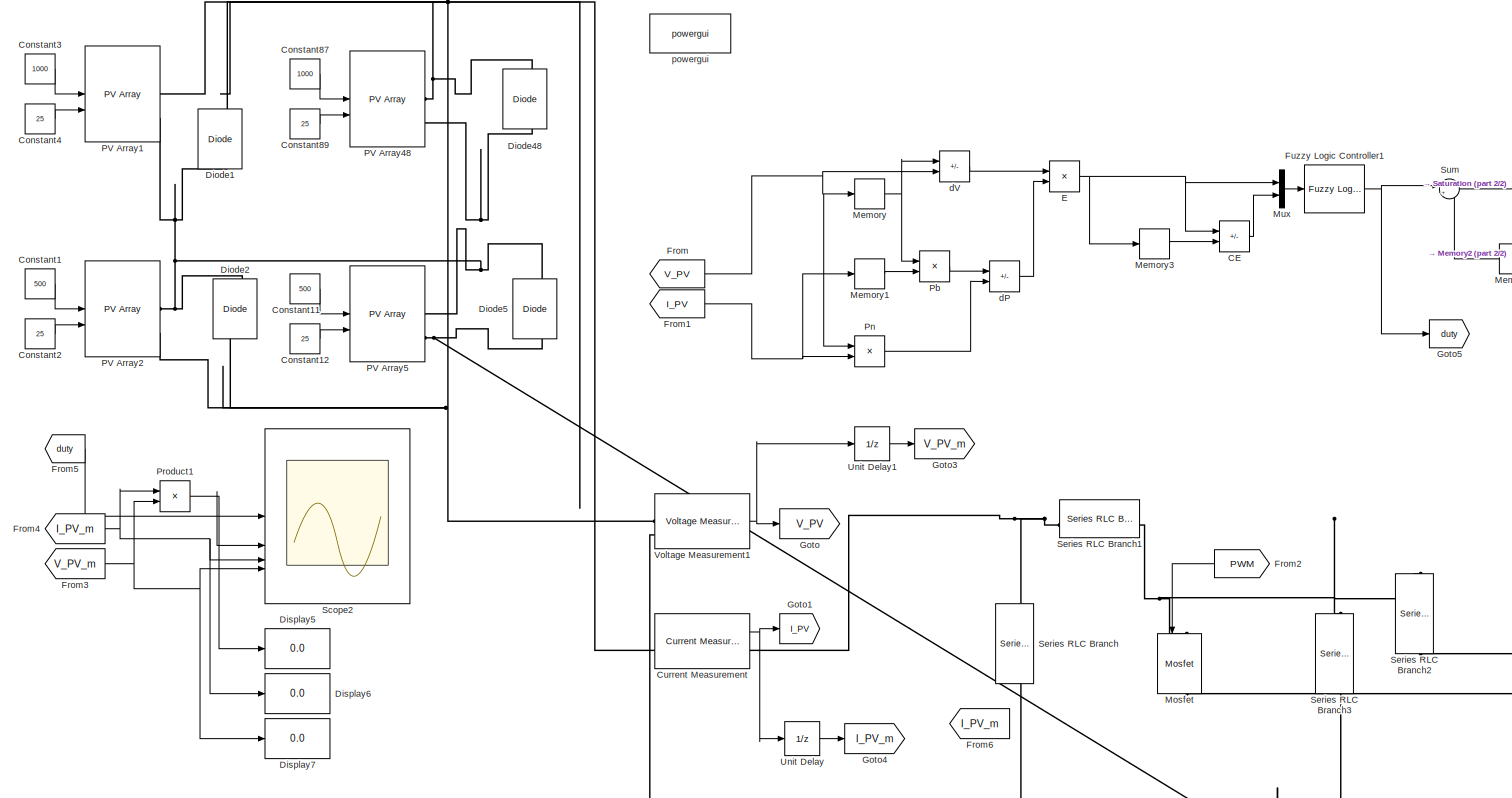
[diagram: root canvas - part 1/2, central region]
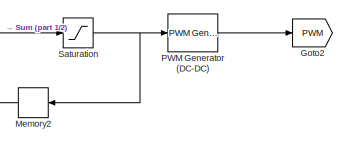
[diagram: root canvas - part 2/2, top right region]
MODEL slx_63d74f4dceec
KIND model
CONFIG AbsTol = auto
CONFIG EnableMultiTasking = off
CONFIG FixedStep = auto
CONFIG MaxStep = auto
CONFIG MinStep = auto
CONFIG RelTol = 1e-3
CONFIG SampleTimeConstraint = Unconstrained
CONFIG SolverName = VariableStepAuto
CONFIG StartTime = 0.0
CONFIG StopTime = 10.0
BLOCK [Sum] CE
  IconShape = rectangular
  Inputs = +-
BLOCK [Constant] Constant1
  Value = 500
BLOCK [Constant] Constant11
  Value = 500
BLOCK [Constant] Constant12
  Value = 25
BLOCK [Constant] Constant2
  Value = 25
BLOCK [Constant] Constant3
  Value = 1000
BLOCK [Constant] Constant4
  Value = 25
BLOCK [Constant] Constant87
  Value = 1000
BLOCK [Constant] Constant89
  Value = 25
BLOCK [Reference] Current Measurement  REF=spsCurrentMeasurementLib/Current Measurement
  LibrarySourceBlock = sps_lib/Sensors and Measurements/Current Measurement
  SourceBlock = spsCurrentMeasurementLib/Current Measurement
  SourceType = Current Measurement
  UserDataPersistent = on
BLOCK [Reference] Diode1  REF=spsDiodeLib/Diode
  LibrarySourceBlock = sps_lib/Power Electronics/Diode
  NameLocation = right
  SourceBlock = spsDiodeLib/Diode
  SourceType = Diode
BLOCK [Reference] Diode2  REF=spsDiodeLib/Diode
  LibrarySourceBlock = sps_lib/Power Electronics/Diode
  NameLocation = right
  SourceBlock = spsDiodeLib/Diode
  SourceType = Diode
BLOCK [Reference] Diode48  REF=spsDiodeLib/Diode
  LibrarySourceBlock = sps_lib/Power Electronics/Diode
  NameLocation = right
  SourceBlock = spsDiodeLib/Diode
  SourceType = Diode
BLOCK [Reference] Diode5  REF=spsDiodeLib/Diode
  LibrarySourceBlock = sps_lib/Power Electronics/Diode
  NameLocation = right
  SourceBlock = spsDiodeLib/Diode
  SourceType = Diode
BLOCK [Display] Display5
  Decimation = 1
BLOCK [Display] Display6
  Decimation = 1
BLOCK [Display] Display7
  Decimation = 1
BLOCK [Product] E
  Inputs = /*
  NameLocation = top
BLOCK [From] From
  GotoTag = V_PV
BLOCK [From] From1
  GotoTag = I_PV
BLOCK [From] From2
  GotoTag = PWM
  NameLocation = top
BLOCK [From] From3
  GotoTag = V_PV_m
BLOCK [From] From4
  GotoTag = I_PV_m
BLOCK [From] From5
  GotoTag = duty
BLOCK [From] From6
  GotoTag = I_PV_m
BLOCK [Reference] Fuzzy Logic Controller1  REF=fuzblock/Fuzzy Logic   (lib defined in mdl_858b3b3e7478)
Controller
  SourceBlock = fuzblock/Fuzzy Logic \nController
  SourceType = Fuzzy Inference System
BLOCK [Goto] Goto
  GotoTag = V_PV
BLOCK [Goto] Goto1
  GotoTag = I_PV
BLOCK [Goto] Goto2
  GotoTag = PWM
  NameLocation = top
BLOCK [Goto] Goto3
  GotoTag = V_PV_m
BLOCK [Goto] Goto4
  GotoTag = I_PV_m
BLOCK [Goto] Goto5
  GotoTag = duty
BLOCK [Memory] Memory
  InheritSampleTime = on
BLOCK [Memory] Memory1
  InheritSampleTime = on
BLOCK [Memory] Memory2
  InheritSampleTime = on
  NameLocation = top
BLOCK [Memory] Memory3
  InheritSampleTime = on
BLOCK [Reference] Mosfet  REF=spsMosfetLib/Mosfet
  LibrarySourceBlock = sps_lib/Power Electronics/Mosfet
  NameLocation = left
  SourceBlock = spsMosfetLib/Mosfet
  SourceType = Mosfet
BLOCK [Mux] Mux
  DisplayOption = bar
  Inputs = 2
BLOCK [Reference] PV Array1  REF=spsPVArrayLib/PV Array
  LibrarySourceBlock = sps_lib/Sources/PV Array
  SourceBlock = spsPVArrayLib/PV Array
  SourceType = PV array
BLOCK [Reference] PV Array2  REF=spsPVArrayLib/PV Array
  LibrarySourceBlock = sps_lib/Sources/PV Array
  SourceBlock = spsPVArrayLib/PV Array
  SourceType = PV array
BLOCK [Reference] PV Array48  REF=spsPVArrayLib/PV Array
  LibrarySourceBlock = sps_lib/Sources/PV Array
  SourceBlock = spsPVArrayLib/PV Array
  SourceType = PV array
BLOCK [Reference] PV Array5  REF=spsPVArrayLib/PV Array
  LibrarySourceBlock = sps_lib/Sources/PV Array
  SourceBlock = spsPVArrayLib/PV Array
  SourceType = PV array
BLOCK [Reference] PWM Generator (DC-DC)  REF=spsPWMGeneratorDCDCLib/PWM Generator
(DC-DC)
  LibrarySourceBlock = sps_lib/Power Electronics/Power Electronics Control/PWM Generator\n(DC-DC)
  SourceBlock = spsPWMGeneratorDCDCLib/PWM Generator\n(DC-DC)
  SourceType = PWM Generator (DC-DC)
BLOCK [Product] Pb
BLOCK [Product] Pn
BLOCK [Product] Product1
BLOCK [Saturate] Saturation
  LowerLimit = 0.1
  UpperLimit = 0.9
BLOCK [Scope] Scope2
  Floating = off
  NumInputPorts = 4
  ScopeSpecificationString = Simulink.scopes.TimeScopeBlockCfg('CurrentConfiguration', extmgr.ConfigurationSet(extmgr.Configuration('Core','General UI',true,'FigureColor',[1 1 1]),extmgr.Configuration('Core','Source UI',true),extmgr.Configuration('Sources','WiredSimulink',true,'DataLoggingVariableName','ScopeData1'),extmgr.Configuration('Visuals','Time Domain',true,'SerializedDisplays',{struct('MinYLimReal','-55.00000','MaxYL...<+3213ch>
BLOCK [Reference] Series RLC Branch  REF=spsSeriesRLCBranchLib/Series RLC Branch
  LibrarySourceBlock = sps_lib/Passives/Series RLC Branch
  NameLocation = left
  SourceBlock = spsSeriesRLCBranchLib/Series RLC Branch
  SourceType = Series RLC Branch
BLOCK [Reference] Series RLC Branch1  REF=spsSeriesRLCBranchLib/Series RLC Branch
  LibrarySourceBlock = sps_lib/Passives/Series RLC Branch
  NameLocation = top
  SourceBlock = spsSeriesRLCBranchLib/Series RLC Branch
  SourceType = Series RLC Branch
BLOCK [Reference] Series RLC Branch2  REF=spsSeriesRLCBranchLib/Series RLC Branch
  LibrarySourceBlock = sps_lib/Passives/Series RLC Branch
  NameLocation = left
  SourceBlock = spsSeriesRLCBranchLib/Series RLC Branch
  SourceType = Series RLC Branch
BLOCK [Reference] Series RLC Branch3  REF=spsSeriesRLCBranchLib/Series RLC Branch
  LibrarySourceBlock = sps_lib/Passives/Series RLC Branch
  NameLocation = left
  SourceBlock = spsSeriesRLCBranchLib/Series RLC Branch
  SourceType = Series RLC Branch
BLOCK [Sum] Sum
  Inputs = |++
BLOCK [UnitDelay] Unit Delay
  HasFrameUpgradeWarning = on
  SampleTime = -1
BLOCK [UnitDelay] Unit Delay1
  HasFrameUpgradeWarning = on
  SampleTime = -1
BLOCK [Reference] Voltage Measurement1  REF=spsVoltageMeasurementLib/Voltage Measurement
  LibrarySourceBlock = sps_lib/Sensors and Measurements/Voltage Measurement
  SourceBlock = spsVoltageMeasurementLib/Voltage Measurement
  SourceType = Voltage Measurement
  UserDataPersistent = on
BLOCK [Sum] dP
  IconShape = rectangular
  Inputs = -+
BLOCK [Sum] dV
  IconShape = rectangular
  Inputs = +-
BLOCK [Reference] powergui  REF=spspowerguiLib/powergui
  LibrarySourceBlock = sps_lib/powergui
  Priority = 1
  SourceBlock = spspowerguiLib/powergui
  SourceType = PSB option menu block
LINE CE:1 -> Mux:2
LINE Constant11:1 -> PV Array5:1
LINE Constant12:1 -> PV Array5:2
LINE Constant1:1 -> PV Array2:1
LINE Constant2:1 -> PV Array2:2
LINE Constant3:1 -> PV Array1:1
LINE Constant4:1 -> PV Array1:2
LINE Constant87:1 -> PV Array48:1
LINE Constant89:1 -> PV Array48:2
NET Current Measurement:1 -> Goto1:1, Unit Delay:1
NET E:1 -> CE:1, Memory3:1, Mux:1
NET From1:1 -> Memory1:1, Pn:2
LINE From2:1 -> Mosfet:1
NET From3:1 -> Display7:1, Product1:2, Scope2:4
NET From4:1 -> Display6:1, Product1:1, Scope2:3
LINE From5:1 -> Scope2:1
NET From:1 -> Memory:1, Pn:1, dV:2
NET Fuzzy Logic Controller1:1 -> Goto5:1, Sum:1
LINE Memory1:1 -> Pb:2
LINE Memory2:1 -> Sum:2
LINE Memory3:1 -> CE:2
NET Memory:1 -> Pb:1, dV:1
LINE Mux:1 -> Fuzzy Logic Controller1:1
LINE PWM Generator (DC-DC):1 -> Goto2:1
LINE Pb:1 -> dP:1
LINE Pn:1 -> dP:2
NET Product1:1 -> Display5:1, Scope2:2
NET Saturation:1 -> Memory2:1, PWM Generator (DC-DC):1
LINE Sum:1 -> Saturation:1
LINE Unit Delay1:1 -> Goto3:1
LINE Unit Delay:1 -> Goto4:1
NET Voltage Measurement1:1 -> Goto:1, Unit Delay1:1
LINE dP:1 -> E:2
LINE dV:1 -> E:1
PNET net1: Current Measurement:LConn1 -- Diode1:RConn1 -- Diode48:RConn1 -- PV Array1:RConn1 -- PV Array48:RConn1 -- Voltage Measurement1:LConn1
PNET net2: Current Measurement:RConn1 -- Series RLC Branch1:RConn1 -- Series RLC Branch:LConn1
PNET net3: Diode1:LConn1 -- Diode2:RConn1 -- Diode48:LConn1 -- Diode5:RConn1 -- PV Array1:RConn2 -- PV Array2:RConn1 -- PV Array48:RConn2 -- PV Array5:RConn1
PNET net4: Diode2:LConn1 -- Diode5:LConn1 -- Mosfet:RConn1 -- PV Array2:RConn2 -- PV Array5:RConn2 -- Series RLC Branch2:RConn1 -- Series RLC Branch3:RConn1 -- Series RLC Branch:RConn1 -- Voltage Measurement1:LConn2
PNET net5: Mosfet:LConn1 -- Series RLC Branch1:LConn1 -- Series RLC Branch2:LConn1 -- Series RLC Branch3:LConn1
note: NET lines group one-source signal fan-out (src -> all destinations, sorted); 1:1 wires keep LINE; PNET lines group multi-terminal physical nets as a canonical sorted terminal list (undirected conserving connections); 2-terminal nets keep the pairwise PLINE form
